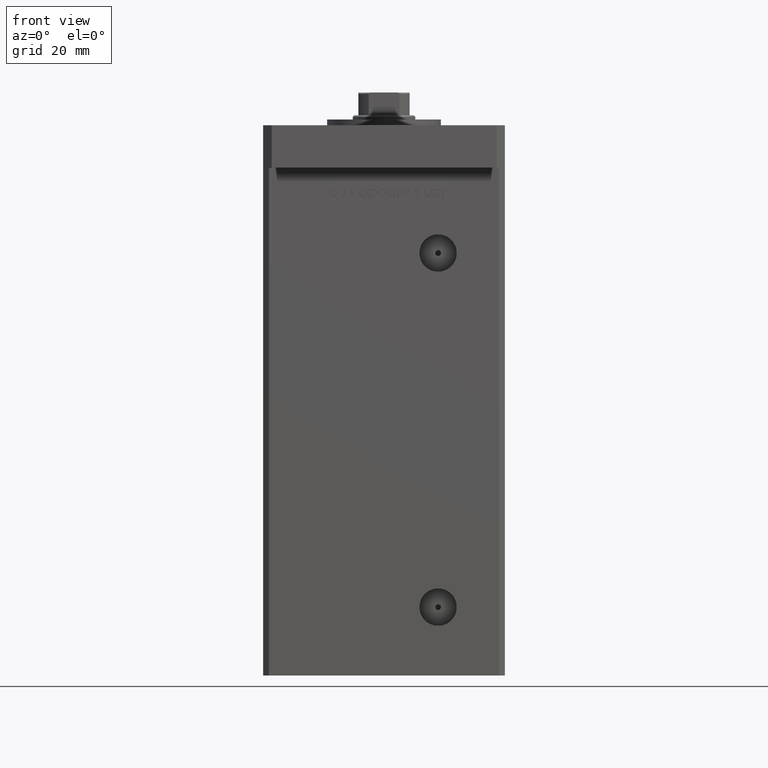
[diagram: clean part render]
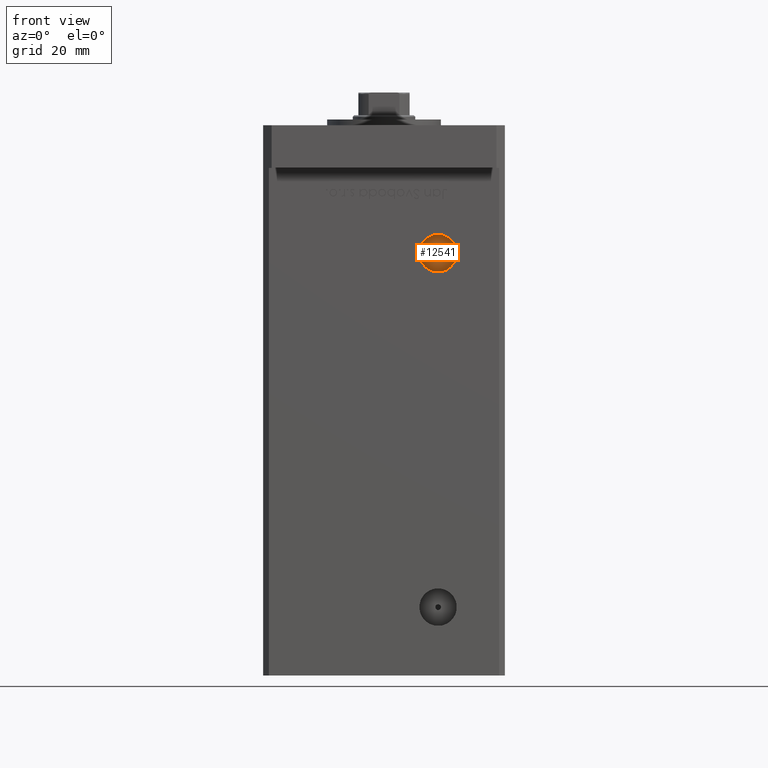
[diagram: same view with one face highlighted and labeled with its STEP entity id]
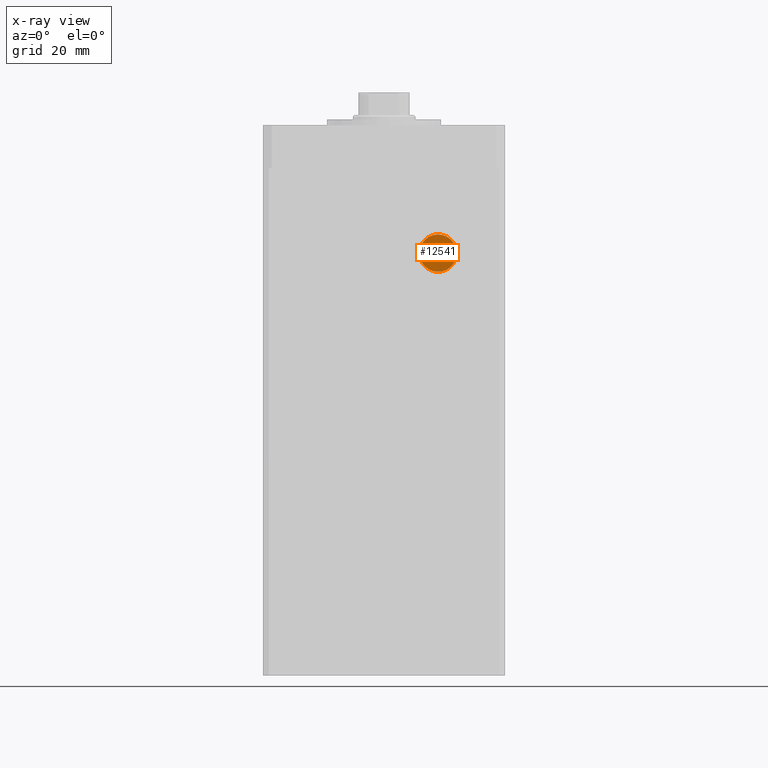
[diagram: x-ray of the same camera — body ghosted, the highlighted face saturated]
A machine part, front view. The second image highlights one B-rep face of the part: STEP entity #12541.
The next image is the same camera in x-ray: the body ghosted, the highlighted face saturated — about 0% of this face is hidden behind the body in this view.
In plain terms, the highlighted planar face has unit normal (0, -1, 0).
Its self-contained STEP definition (entity closure, byte-faithful):
#159 = AXIS2_PLACEMENT_3D ( 'NONE', #17053, #17315, #16251 ) ;
#770 = CARTESIAN_POINT ( 'NONE',  ( 18.99999999999997513, -24.50000000000000711, 132.5000000000000000 ) ) ;
#3801 = VERTEX_POINT ( 'NONE', #15212 ) ;
#3911 = DIRECTION ( 'NONE',  ( 0.000000000000000000, -1.000000000000000000, 0.000000000000000000 ) ) ;
#4123 = ORIENTED_EDGE ( 'NONE', *, *, #18246, .F. ) ;
#5562 = EDGE_CURVE ( 'NONE', #22945, #30588, #20968, .T. ) ;
#5741 = DIRECTION ( 'NONE',  ( 0.000000000000000000, 0.000000000000000000, -1.000000000000000000 ) ) ;
#6510 = ORIENTED_EDGE ( 'NONE', *, *, #5562, .F. ) ;
#7282 = EDGE_CURVE ( 'NONE', #14004, #3801, #13910, .T. ) ;
#9687 = AXIS2_PLACEMENT_3D ( 'NONE', #16668, #3911, #12319 ) ;
#9751 = PLANE ( 'NONE',  #35750 ) ;
#12319 = DIRECTION ( 'NONE',  ( 0.000000000000000000, 0.000000000000000000, -1.000000000000000000 ) ) ;
#12541 = ADVANCED_FACE ( 'NONE', ( #25066, #25330 ), #9751, .T. ) ;
#13910 = CIRCLE ( 'NONE', #9687, 1.000000000000000888 ) ;
#14004 = VERTEX_POINT ( 'NONE', #770 ) ;
#15212 = CARTESIAN_POINT ( 'NONE',  ( 18.99999999999997513, -24.50000000000000711, 134.5000000000000000 ) ) ;
#16251 = DIRECTION ( 'NONE',  ( 0.000000000000000000, 0.000000000000000000, -1.000000000000000000 ) ) ;
#16379 = CARTESIAN_POINT ( 'NONE',  ( 0.000000000000000000, -24.50000000000000711, 0.000000000000000000 ) ) ;
#16438 = ORIENTED_EDGE ( 'NONE', *, *, #7282, .F. ) ;
#16668 = CARTESIAN_POINT ( 'NONE',  ( 18.99999999999997513, -24.50000000000000711, 133.5000000000000000 ) ) ;
#17053 = CARTESIAN_POINT ( 'NONE',  ( 18.99999999999997513, -24.50000000000000711, 133.5000000000000000 ) ) ;
#17315 = DIRECTION ( 'NONE',  ( -0.000000000000000000, 1.000000000000000000, -0.000000000000000000 ) ) ;
#18246 = EDGE_CURVE ( 'NONE', #3801, #14004, #48937, .T. ) ;
#20126 = EDGE_LOOP ( 'NONE', ( #16438, #4123 ) ) ;
#20968 = CIRCLE ( 'NONE', #159, 6.580000000000002736 ) ;
#22317 = DIRECTION ( 'NONE',  ( 0.000000000000000000, -1.000000000000000000, 0.000000000000000000 ) ) ;
#22945 = VERTEX_POINT ( 'NONE', #46740 ) ;
#25066 = FACE_BOUND ( 'NONE', #20126, .T. ) ;
#25330 = FACE_OUTER_BOUND ( 'NONE', #44225, .T. ) ;
#26395 = AXIS2_PLACEMENT_3D ( 'NONE', #51586, #22317, #5741 ) ;
#28076 = CARTESIAN_POINT ( 'NONE',  ( 18.99999999999997513, -24.50000000000000711, 133.5000000000000000 ) ) ;
#28341 = DIRECTION ( 'NONE',  ( -0.000000000000000000, 1.000000000000000000, -0.000000000000000000 ) ) ;
#30588 = VERTEX_POINT ( 'NONE', #43180 ) ;
#35750 = AXIS2_PLACEMENT_3D ( 'NONE', #16379, #37573, #41627 ) ;
#37573 = DIRECTION ( 'NONE',  ( 0.000000000000000000, -1.000000000000000000, 0.000000000000000000 ) ) ;
#37693 = CIRCLE ( 'NONE', #38567, 6.580000000000002736 ) ;
#38567 = AXIS2_PLACEMENT_3D ( 'NONE', #28076, #28341, #40312 ) ;
#40312 = DIRECTION ( 'NONE',  ( 0.000000000000000000, 0.000000000000000000, -1.000000000000000000 ) ) ;
#40384 = EDGE_CURVE ( 'NONE', #30588, #22945, #37693, .T. ) ;
#41627 = DIRECTION ( 'NONE',  ( 0.000000000000000000, -0.000000000000000000, -1.000000000000000000 ) ) ;
#43180 = CARTESIAN_POINT ( 'NONE',  ( 18.99999999999997513, -24.50000000000000711, 126.9200000000000017 ) ) ;
#43396 = ORIENTED_EDGE ( 'NONE', *, *, #40384, .F. ) ;
#44225 = EDGE_LOOP ( 'NONE', ( #43396, #6510 ) ) ;
#46740 = CARTESIAN_POINT ( 'NONE',  ( 18.99999999999997513, -24.50000000000000711, 140.0800000000000125 ) ) ;
#48937 = CIRCLE ( 'NONE', #26395, 1.000000000000000888 ) ;
#51586 = CARTESIAN_POINT ( 'NONE',  ( 18.99999999999997513, -24.50000000000000711, 133.5000000000000000 ) ) ;